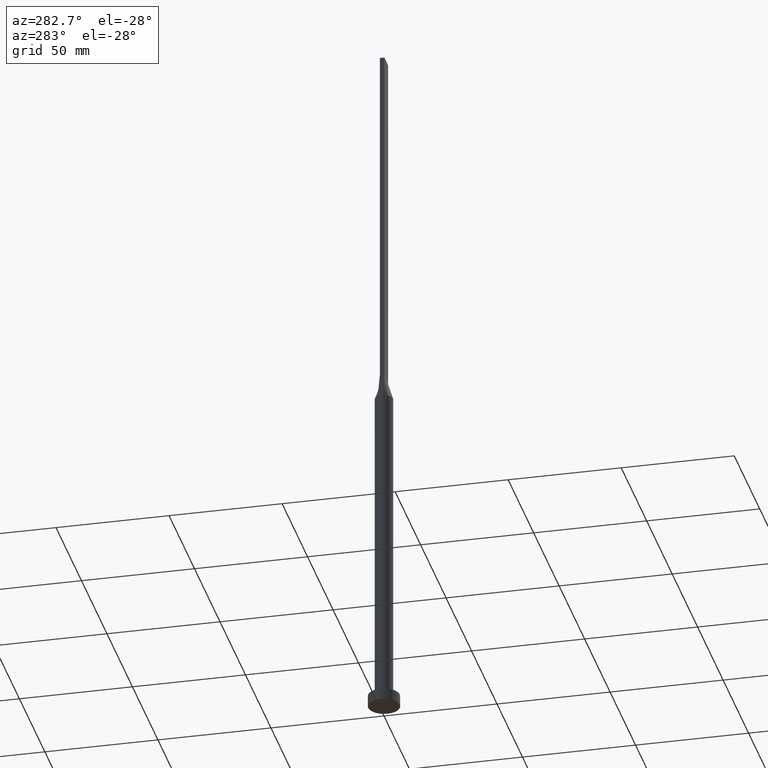
[diagram: clean part render]
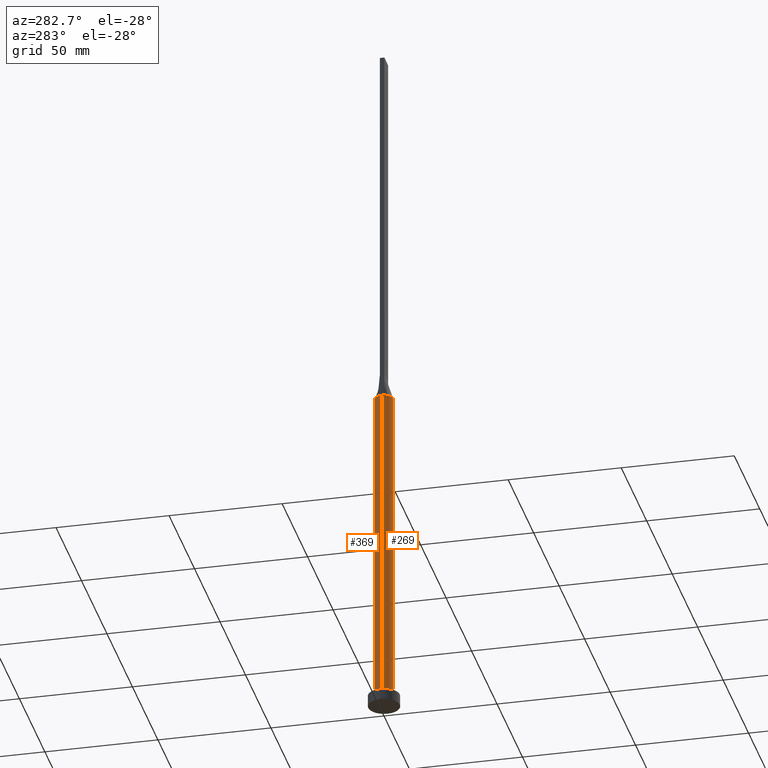
[diagram: same view with one multi-face feature highlighted, each face labeled with its STEP entity id]
A machine part, auxiliary view. The highlighted faces form ONE feature: a constant-radius fillet chain: 2 tangent blend faces with common blend radius 4 mm. The faces share edges in the B-rep.
Their STEP definitions:
[1] entity #369 (Cylinder):
#3 = EDGE_CURVE ( 'NONE', #221, #506, #572, .T. ) ;
#20 = VECTOR ( 'NONE', #167, 1000.000000000000000 ) ;
#28 = CARTESIAN_POINT ( 'NONE',  ( -1.940702937457743138, 3.532374760555930582, 149.9999999999999716 ) ) ;
#42 = EDGE_CURVE ( 'NONE', #63, #143, #276, .T. ) ;
#47 = CYLINDRICAL_SURFACE ( 'NONE', #339, 4.000000000000000000 ) ;
#57 = CARTESIAN_POINT ( 'NONE',  ( -4.000000000000000000, 0.000000000000000000, 5.000000000000000000 ) ) ;
#63 = VERTEX_POINT ( 'NONE', #342 ) ;
#66 = DIRECTION ( 'NONE',  ( -0.000000000000000000, -0.000000000000000000, -1.000000000000000000 ) ) ;
#73 = DIRECTION ( 'NONE',  ( 1.000000000000000000, 0.000000000000000000, 0.000000000000000000 ) ) ;
#77 = CARTESIAN_POINT ( 'NONE',  ( -2.346407003458401253, 3.270103945996944095, 150.0000000000000000 ) ) ;
#85 = VECTOR ( 'NONE', #66, 1000.000000000000000 ) ;
#91 = AXIS2_PLACEMENT_3D ( 'NONE', #521, #157, #567 ) ;
#97 = EDGE_CURVE ( 'NONE', #143, #364, #433, .T. ) ;
#107 = CARTESIAN_POINT ( 'NONE',  ( -3.865236553917747120, 1.030730781768519622, 150.0000000000000000 ) ) ;
#109 = ORIENTED_EDGE ( 'NONE', *, *, #3, .F. ) ;
#115 = DIRECTION ( 'NONE',  ( 0.000000000000000000, 0.000000000000000000, 1.000000000000000000 ) ) ;
#125 = DIRECTION ( 'NONE',  ( 0.000000000000000000, 0.000000000000000000, 1.000000000000000000 ) ) ;
#127 = CARTESIAN_POINT ( 'NONE',  ( 2.346407003458400808, 3.270103945996944983, 150.0000000000000000 ) ) ;
#134 = EDGE_CURVE ( 'NONE', #470, #364, #546, .T. ) ;
#143 = VERTEX_POINT ( 'NONE', #568 ) ;
#157 = DIRECTION ( 'NONE',  ( 0.000000000000000000, 0.000000000000000000, 1.000000000000000000 ) ) ;
#159 = LINE ( 'NONE', #202, #85 ) ;
#167 = DIRECTION ( 'NONE',  ( -0.000000000000000000, -0.000000000000000000, -1.000000000000000000 ) ) ;
#174 = CARTESIAN_POINT ( 'NONE',  ( 3.865212754195084699, 1.030724393897464841, 150.0000000000000000 ) ) ;
#199 = CARTESIAN_POINT ( 'NONE',  ( 3.009488128496037085, 2.672487015486669115, 150.0000000000000000 ) ) ;
#202 = CARTESIAN_POINT ( 'NONE',  ( 4.000000000000000000, 4.898587196589412829E-16, 150.0000000000000000 ) ) ;
#214 = CARTESIAN_POINT ( 'NONE',  ( 4.000000000000000000, -1.256865613583667397E-17, 150.0000000000000000 ) ) ;
#221 = VERTEX_POINT ( 'NONE', #214 ) ;
#230 = EDGE_LOOP ( 'NONE', ( #109, #561, #280, #497, #511, #318 ) ) ;
#235 = DIRECTION ( 'NONE',  ( -0.000000000000000000, -0.000000000000000000, -1.000000000000000000 ) ) ;
#238 = CARTESIAN_POINT ( 'NONE',  ( 4.000000000000000000, 4.898587196589412829E-16, 5.000000000000000000 ) ) ;
#271 = FACE_OUTER_BOUND ( 'NONE', #230, .T. ) ;
#276 = CIRCLE ( 'NONE', #91, 4.000000000000000000 ) ;
#280 = ORIENTED_EDGE ( 'NONE', *, *, #134, .T. ) ;
#289 = CARTESIAN_POINT ( 'NONE',  ( 1.023074425454087999, 3.898373771260456255, 149.9999999999999716 ) ) ;
#318 = ORIENTED_EDGE ( 'NONE', *, *, #355, .F. ) ;
#320 = AXIS2_PLACEMENT_3D ( 'NONE', #473, #115, #564 ) ;
#323 = CARTESIAN_POINT ( 'NONE',  ( 0.000000000000000000, 0.000000000000000000, 150.0000000000000000 ) ) ;
#334 = EDGE_CURVE ( 'NONE', #221, #470, #159, .T. ) ;
#338 = CARTESIAN_POINT ( 'NONE',  ( 0.000000000000000000, 0.000000000000000000, 5.000000000000000000 ) ) ;
#339 = AXIS2_PLACEMENT_3D ( 'NONE', #323, #235, #517 ) ;
#340 = CARTESIAN_POINT ( 'NONE',  ( 3.267840578657193795, 2.338604872288698289, 149.9999999999999432 ) ) ;
#342 = CARTESIAN_POINT ( 'NONE',  ( -3.865236553917747120, 1.030730781768519622, 150.0000000000000000 ) ) ;
#344 = CARTESIAN_POINT ( 'NONE',  ( 3.865212754195084699, 1.030724393897464841, 150.0000000000000000 ) ) ;
#355 = EDGE_CURVE ( 'NONE', #506, #63, #540, .T. ) ;
#364 = VERTEX_POINT ( 'NONE', #57 ) ;
#369 = ADVANCED_FACE ( 'NONE', ( #271 ), #47, .T. ) ;
#379 = CARTESIAN_POINT ( 'NONE',  ( -3.781952206537765537, 1.341853921743403788, 150.0000000000000000 ) ) ;
#382 = CARTESIAN_POINT ( 'NONE',  ( 3.653499896451231521, 1.673258289339057958, 150.0000000000000000 ) ) ;
#390 = CARTESIAN_POINT ( 'NONE',  ( -3.009488128496037529, 2.672487015486668671, 150.0000000000000000 ) ) ;
#426 = CARTESIAN_POINT ( 'NONE',  ( -3.653499896451231521, 1.673258289339058180, 149.9999999999999716 ) ) ;
#427 = CARTESIAN_POINT ( 'NONE',  ( -4.000000000000000000, 0.000000000000000000, 150.0000000000000000 ) ) ;
#433 = LINE ( 'NONE', #427, #20 ) ;
#436 = CARTESIAN_POINT ( 'NONE',  ( 1.940702937457743582, 3.532374760555930582, 149.9999999999999716 ) ) ;
#437 = AXIS2_PLACEMENT_3D ( 'NONE', #338, #125, #73 ) ;
#470 = VERTEX_POINT ( 'NONE', #238 ) ;
#472 = CARTESIAN_POINT ( 'NONE',  ( -1.023074425454088221, 3.898373771260455811, 149.9999999999999716 ) ) ;
#473 = CARTESIAN_POINT ( 'NONE',  ( 0.000000000000000000, 0.000000000000000000, 150.0000000000000000 ) ) ;
#483 = CARTESIAN_POINT ( 'NONE',  ( -0.5121855420560009753, 4.000000000000000888, 150.0000000000000000 ) ) ;
#497 = ORIENTED_EDGE ( 'NONE', *, *, #97, .F. ) ;
#506 = VERTEX_POINT ( 'NONE', #174 ) ;
#511 = ORIENTED_EDGE ( 'NONE', *, *, #42, .F. ) ;
#517 = DIRECTION ( 'NONE',  ( -1.000000000000000000, 0.000000000000000000, 0.000000000000000000 ) ) ;
#521 = CARTESIAN_POINT ( 'NONE',  ( 0.000000000000000000, 0.000000000000000000, 150.0000000000000000 ) ) ;
#524 = CARTESIAN_POINT ( 'NONE',  ( 0.5121855420560009753, 4.000000000000000888, 150.0000000000000000 ) ) ;
#527 = CARTESIAN_POINT ( 'NONE',  ( 3.781952206537764205, 1.341853921743403788, 150.0000000000000568 ) ) ;
#540 = B_SPLINE_CURVE_WITH_KNOTS ( 'NONE', 3,
 ( #344, #527, #382, #340, #199, #127, #436, #289, #524, #483, #472, #28, #77, #390, #577, #426, #379, #107 ),
 .UNSPECIFIED., .F., .F.,
 ( 4, 2, 2, 2, 2, 2, 2, 2, 4 ),
 ( 0.000000000000000000, 0.1250000000000000000, 0.2500000000000000000, 0.3750000000000000000, 0.5000000000000000000, 0.6250000000000000000, 0.7500000000000000000, 0.8750000000000000000, 1.000000000000000000 ),
 .UNSPECIFIED. ) ;
#546 = CIRCLE ( 'NONE', #437, 4.000000000000000000 ) ;
#561 = ORIENTED_EDGE ( 'NONE', *, *, #334, .T. ) ;
#564 = DIRECTION ( 'NONE',  ( 1.000000000000000000, 0.000000000000000000, 0.000000000000000000 ) ) ;
#567 = DIRECTION ( 'NONE',  ( 1.000000000000000000, 0.000000000000000000, 0.000000000000000000 ) ) ;
#568 = CARTESIAN_POINT ( 'NONE',  ( -4.000000000000000000, -2.459132308497027359E-16, 150.0000000000000000 ) ) ;
#572 = CIRCLE ( 'NONE', #320, 4.000000000000000000 ) ;
#577 = CARTESIAN_POINT ( 'NONE',  ( -3.267840578657194239, 2.338604872288698289, 149.9999999999999716 ) ) ;
[2] entity #269 (Cylinder):
#20 = VECTOR ( 'NONE', #167, 1000.000000000000000 ) ;
#25 = DIRECTION ( 'NONE',  ( 1.000000000000000000, 0.000000000000000000, 0.000000000000000000 ) ) ;
#33 = FACE_OUTER_BOUND ( 'NONE', #467, .T. ) ;
#54 = ORIENTED_EDGE ( 'NONE', *, *, #389, .F. ) ;
#57 = CARTESIAN_POINT ( 'NONE',  ( -4.000000000000000000, 0.000000000000000000, 5.000000000000000000 ) ) ;
#66 = DIRECTION ( 'NONE',  ( -0.000000000000000000, -0.000000000000000000, -1.000000000000000000 ) ) ;
#82 = CIRCLE ( 'NONE', #188, 4.000000000000000000 ) ;
#85 = VECTOR ( 'NONE', #66, 1000.000000000000000 ) ;
#97 = EDGE_CURVE ( 'NONE', #143, #364, #433, .T. ) ;
#110 = DIRECTION ( 'NONE',  ( 0.000000000000000000, 0.000000000000000000, 1.000000000000000000 ) ) ;
#114 = CYLINDRICAL_SURFACE ( 'NONE', #391, 4.000000000000000000 ) ;
#117 = DIRECTION ( 'NONE',  ( 0.000000000000000000, 0.000000000000000000, 1.000000000000000000 ) ) ;
#139 = CIRCLE ( 'NONE', #233, 4.000000000000000000 ) ;
#143 = VERTEX_POINT ( 'NONE', #568 ) ;
#158 = DIRECTION ( 'NONE',  ( 0.000000000000000000, 0.000000000000000000, 1.000000000000000000 ) ) ;
#159 = LINE ( 'NONE', #202, #85 ) ;
#166 = DIRECTION ( 'NONE',  ( -1.000000000000000000, 0.000000000000000000, 0.000000000000000000 ) ) ;
#167 = DIRECTION ( 'NONE',  ( -0.000000000000000000, -0.000000000000000000, -1.000000000000000000 ) ) ;
#177 = ORIENTED_EDGE ( 'NONE', *, *, #576, .F. ) ;
#178 = DIRECTION ( 'NONE',  ( 1.000000000000000000, 0.000000000000000000, 0.000000000000000000 ) ) ;
#188 = AXIS2_PLACEMENT_3D ( 'NONE', #565, #158, #335 ) ;
#191 = EDGE_CURVE ( 'NONE', #197, #221, #82, .T. ) ;
#194 = VERTEX_POINT ( 'NONE', #428 ) ;
#197 = VERTEX_POINT ( 'NONE', #270 ) ;
#202 = CARTESIAN_POINT ( 'NONE',  ( 4.000000000000000000, 4.898587196589412829E-16, 150.0000000000000000 ) ) ;
#214 = CARTESIAN_POINT ( 'NONE',  ( 4.000000000000000000, -1.256865613583667397E-17, 150.0000000000000000 ) ) ;
#221 = VERTEX_POINT ( 'NONE', #214 ) ;
#233 = AXIS2_PLACEMENT_3D ( 'NONE', #466, #110, #178 ) ;
#238 = CARTESIAN_POINT ( 'NONE',  ( 4.000000000000000000, 4.898587196589412829E-16, 5.000000000000000000 ) ) ;
#248 = DIRECTION ( 'NONE',  ( -0.000000000000000000, -0.000000000000000000, -1.000000000000000000 ) ) ;
#257 = AXIS2_PLACEMENT_3D ( 'NONE', #308, #545, #392 ) ;
#269 = ADVANCED_FACE ( 'NONE', ( #33 ), #114, .T. ) ;
#270 = CARTESIAN_POINT ( 'NONE',  ( 3.865244591400370577, -1.030732999276501527, 150.0000000000000000 ) ) ;
#274 = CIRCLE ( 'NONE', #257, 4.000000000000000000 ) ;
#287 = ORIENTED_EDGE ( 'NONE', *, *, #325, .T. ) ;
#300 = CARTESIAN_POINT ( 'NONE',  ( 0.000000000000000000, 0.000000000000000000, 5.000000000000000000 ) ) ;
#308 = CARTESIAN_POINT ( 'NONE',  ( 0.000000000000000000, 0.000000000000000000, 150.0000000000000000 ) ) ;
#322 = ORIENTED_EDGE ( 'NONE', *, *, #191, .F. ) ;
#325 = EDGE_CURVE ( 'NONE', #364, #470, #362, .T. ) ;
#334 = EDGE_CURVE ( 'NONE', #221, #470, #159, .T. ) ;
#335 = DIRECTION ( 'NONE',  ( 1.000000000000000000, -6.217248937900876626E-15, 0.000000000000000000 ) ) ;
#362 = CIRCLE ( 'NONE', #441, 4.000000000000000000 ) ;
#364 = VERTEX_POINT ( 'NONE', #57 ) ;
#368 = ORIENTED_EDGE ( 'NONE', *, *, #97, .T. ) ;
#389 = EDGE_CURVE ( 'NONE', #143, #194, #139, .T. ) ;
#391 = AXIS2_PLACEMENT_3D ( 'NONE', #520, #248, #166 ) ;
#392 = DIRECTION ( 'NONE',  ( 1.000000000000000000, 0.000000000000000000, 0.000000000000000000 ) ) ;
#416 = ORIENTED_EDGE ( 'NONE', *, *, #334, .F. ) ;
#427 = CARTESIAN_POINT ( 'NONE',  ( -4.000000000000000000, 0.000000000000000000, 150.0000000000000000 ) ) ;
#428 = CARTESIAN_POINT ( 'NONE',  ( -3.865220763612065902, -1.030726602927787949, 150.0000000000000000 ) ) ;
#433 = LINE ( 'NONE', #427, #20 ) ;
#441 = AXIS2_PLACEMENT_3D ( 'NONE', #300, #117, #25 ) ;
#466 = CARTESIAN_POINT ( 'NONE',  ( 0.000000000000000000, 0.000000000000000000, 150.0000000000000000 ) ) ;
#467 = EDGE_LOOP ( 'NONE', ( #416, #322, #177, #54, #368, #287 ) ) ;
#470 = VERTEX_POINT ( 'NONE', #238 ) ;
#520 = CARTESIAN_POINT ( 'NONE',  ( 0.000000000000000000, 0.000000000000000000, 150.0000000000000000 ) ) ;
#545 = DIRECTION ( 'NONE',  ( 0.000000000000000000, 0.000000000000000000, 1.000000000000000000 ) ) ;
#565 = CARTESIAN_POINT ( 'NONE',  ( 0.000000000000000000, 0.000000000000000000, 150.0000000000000000 ) ) ;
#568 = CARTESIAN_POINT ( 'NONE',  ( -4.000000000000000000, -2.459132308497027359E-16, 150.0000000000000000 ) ) ;
#576 = EDGE_CURVE ( 'NONE', #194, #197, #274, .T. ) ;